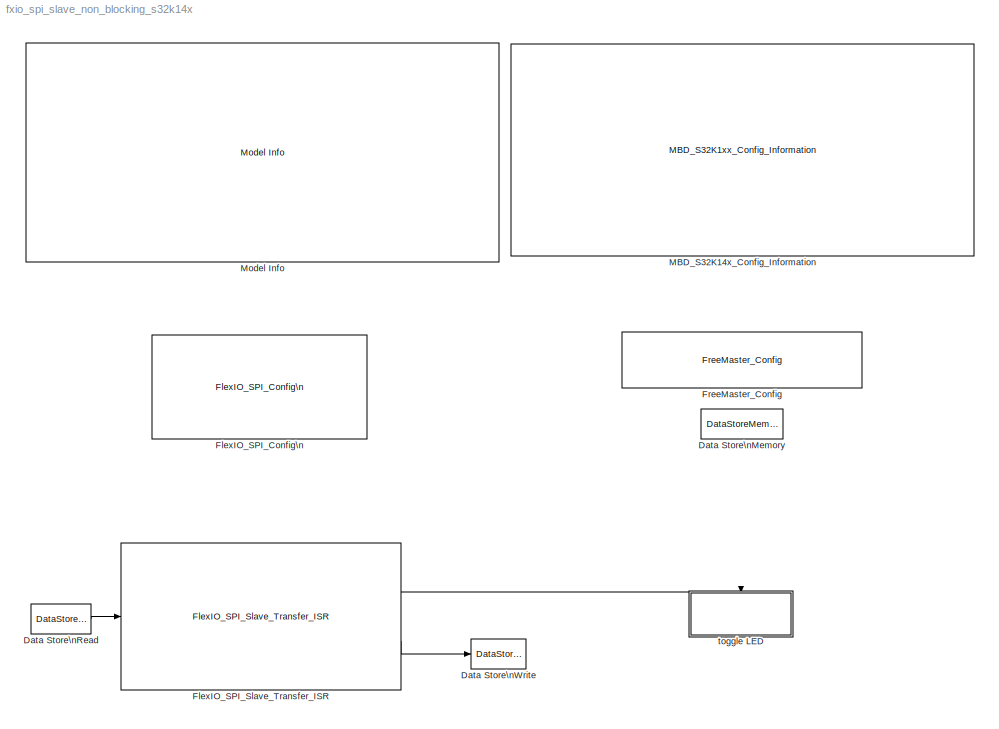
MODEL fxio_spi_slave_non_blocking_s32k14x
KIND model
CONFIG InitFcn = mbd_s32k_consistency_checks(bdroot(gcs));
BLOCK [DataStoreMemory] Data Store\nMemory
  DataStoreName = slave_recv
  Dimensions = 1
  OutDataTypeStr = uint8
  ReadBeforeWriteMsg = warning
  SID = 218
  ShowAdditionalParam = off
  WriteAfterReadMsg = warning
  WriteAfterWriteMsg = warning
BLOCK [DataStoreRead] Data Store\nRead
  DataStoreName = slave_recv
  Ports = [0, 1]
  SID = 219
BLOCK [DataStoreWrite] Data Store\nWrite
  DataStoreName = slave_recv
  Ports = [1]
  SID = 220
BLOCK [Reference] FlexIO_SPI_Config\n  REF=mbd_s32k1xx_ec_toolbox/Communication Blocks/FlexIO Blocks\n/FlexIO SPI Blocks/FlexIO_SPI_Config\n
  BaudRate = 10000
  BitOrder = MSB first
  CPHA = 0
  CPOL = 0
  DriverType = Interrupts
  InstanceNumber = 0
  MISOPin = PTD1: [FXIO_D1 | FlexIO Bi-directional Shift/timer I/O]
  MOSIPin = PTD0: [FXIO_D0 | FlexIO Bi-directional Shift/timer I/O]
  Ports = []
  Priority = 1
  Role = Slave
  SCKPin = PTD2: [FXIO_D4 | FlexIO Bi-directional Shift/timer I/O]
  SID = 187
  SSPin = PTD3: [FXIO_D5 | FlexIO Bi-directional Shift/timer I/O]
  ShowAdvanced = on
  SourceBlock = mbd_s32k1xx_ec_toolbox/Communication Blocks/FlexIO Blocks\n/FlexIO SPI Blocks/FlexIO_SPI_Config\n
  SourceType = flexio_spi_s32k_config
  TransferSize = 1B
BLOCK [Reference] FlexIO_SPI_Slave_Transfer_ISR  REF=mbd_s32k1xx_ec_toolbox/Communication Blocks/FlexIO Blocks\n/FlexIO SPI Blocks/FlexIO_SPI_Slave_Transfer_ISR
  InstanceNumber = 0
  Ports = [1, 2]
  Priority = 5
  SID = 208
  SourceBlock = mbd_s32k1xx_ec_toolbox/Communication Blocks/FlexIO Blocks\n/FlexIO SPI Blocks/FlexIO_SPI_Slave_Transfer_ISR
  SourceType = flexio_spi_s32k_slave_transfer_isr
BLOCK [Reference] FreeMaster_Config  REF=mbd_s32k1xx_ec_toolbox/Utility Blocks/FreeMaster_Config
  Ports = []
  SID = 224
  SourceBlock = mbd_s32k1xx_ec_toolbox/Utility Blocks/FreeMaster_Config
  SourceType = fm_s32k_config
  baudrate = 115200
  comm_buffer_size = 255
  comm_buffer_size_auto = on
  comm_rqueue_size = 32
  comm_rqueue_size_default = on
  interface = LPUART1
  isr_prio = 11
  max_rec_vars = 8
  max_scope_vars = 8
  mode = Short Interrupt
  rec_buff_size = 1024
  rec_timebase = 0
  rec_timebase_unit = seconds
  rxd = PTC6: [LPUART1_RX | Receive]
  show_adv_opts = on
  txd = PTC7: [LPUART1_TX | Transmit]
  use_recorder = on
  use_scope = on
BLOCK [Reference] MBD_S32K14x_Config_Information  REF=mbd_s32k1xx_ec_toolbox/MBD_S32K1xx_Config_Information
  ADC_PcrCheckEnDis = on
  AMMCLIB_PcrCheckEnDis = on
  CMP_PcrCheckEnDis = on
  CSEc_PcrCheckEnDis = on
  ConfigParams_PcrCheckEnDis = on
  FM_PcrCheckEnDis = on
  FTM_Dual_Edge_Inputs_PcrCheckEnDis = on
  FTM_Hall_Sensor_Inputs_PcrCheckEnDis = on
  FTM_Input_Edge_Inputs_PcrCheckEnDis = on
  FTM_PWM_PcrCheckEnDis = on
  FTM_Quadrature_Inputs_PcrCheckEnDis = on
  FlexCAN_PcrCheckEnDis = on
  FlexIO_PcrCheckEnDis = on
  GPIO_InputPcrCheckEnDis = on
  GPIO_OutputPcrCheckEnDis = on
  LIN_PcrCheckEnDis = on
  LPI2C_PcrCheckEnDis = on
  LPSPI_PcrCheckEnDis = on
  LPTMR_PcrCheckEnDis = on
  LPUART_PcrCheckEnDis = on
  ModelRef_PcrCheckEnDis = on
  PDB0_PcrCheckEnDis = on
  PIT_PcrCheckEnDis = on
  Ports = []
  Profile_PcrCheckEnDis = on
  RTC_PcrCheckEnDis = on
  SBC_PcrCheckEnDis = on
  SID = 117
  SourceBlock = mbd_s32k1xx_ec_toolbox/MBD_S32K1xx_Config_Information
  SourceType = MBDTBX_EC_S32K
  WDOG_PcrCheckEnDis = on
  config_params = []
  disp_str = Target : S32K144-64KB_SRAM\nPackage : 100-pin\nSystem clock : 80 MHz\nXTAL clock : External 8 MHz\nCompiler : GCC\nTarget Type : FLASH\nDownload Code after build : (OpenSDA: D)\nStep Tick Interrupt Priority : 15
  ds_import_enable = on
  eDMA_PcrCheckEnDis = on
  gcc_target_assemble_opts = -mcpu=cortex-m4 -mthumb -mfloat-abi=hard -mfpu=fpv4-sp-d16 -g
  gcc_target_compile_opts = -mcpu=cortex-m4 -mthumb -mfloat-abi=hard -mfpu=fpv4-sp-d16 -O1 -g -gstrict-dwarf
  gcc_target_default_lcf = on
  gcc_target_link_opts = -mcpu=cortex-m4 -mthumb -mfloat-abi=hard -mfpu=fpv4-sp-d16
  gcc_target_user_lcf = S32K144_64_flash.ld
  ghs_target_assemble_opts = -cpu=cortexm4f -fpu=vfpv4_d16
  ghs_target_compile_opts = -cpu=cortexm4f -thumb -DARM_MATH_CM4 -fpu=vfpv4_d16 -fsingle -Ogeneral -Wundef -Wimplicit-int -Wshadow -Wtrigraphs --no_commons --gnu_asm -gnu99 -gdwarf-2 -G
  ghs_target_default_lcf = off
  ghs_target_link_opts = -cpu=cortexm4f -thumb -fpu=vfpv4_d16
  ghs_target_user_lcf = S32K144_64_flash.ld
  iar_target_assemble_opts = --cpu Cortex-M4F --thumb --fpu VFPv4_sp
  iar_target_compile_opts = --cpu=Cortex-M4F --thumb --fpu=VFPv4_sp -Ol -e --debug --dlib_config normal
  iar_target_default_lcf = off
  iar_target_link_opts = --no_exceptions --vfe --inline
  iar_target_user_lcf = S32K144_64_flash.icf
  mbdt_ver = 0
  mcu_steptick_prio = 15
  mcu_steptick_timer = LPIT Channel 0
  mcu_system_clock_freq = 80
  mcu_target_name = S32K144
  mcu_target_package = 100-LQFP
  mcu_target_sram_size = 64KB
  mcu_xtal_freq = External 8
  pil_download_enable = off
  pil_download_rate = 57600
  pil_opensda_drive = Custom
  pil_opensda_drive_custom = D
  pil_uart_instance = 1
  pil_uart_rx = PTC6: [LPUART1_RX | Receive]
  pil_uart_tx = PTC7: [LPUART1_TX | Transmit]
  rbl_com_port = Custom
  rbl_com_port_custom = COM1
  rbl_download_enable = on
  rbl_download_interface = OpenSDA
  rbl_restart_request = off
  rbl_start_delay = 5000000
  target_compiler = GCC
  target_memory = FLASH
BLOCK [Reference] Model Info  REF=simulink/Model-Wide\nUtilities/Model Info
  DisplayStringWithTags = Model Name: %<ModelName>\n\nDescription: %<Description>
  Frame = off
  HorizontalTextAlignment = Left
  LeftAlignmentValue = 0.02
  MaskDisplayString = Model Name: fxio_spi_slave_non_blocking_s32k14x\\n\\nDescription: This example uses SPI emulation via FLEXIO and acts like a Slave.\\n\\nHW prerequisite:\\n- 2x S32K144 EVB (one running Master from fxio_spi_master_non_blocking), one slave running this code\\n- Connect:\\n      MOSI (slave) [PTD0] - MOSI (master) [PTD0]\\n      MISO (slave) [PTD1] - MISO (master) [PTD1]\\n      SCK (slave)  [PTD2] ...<+324ch>
  Ports = []
  SID = 173
  SourceBlock = simulink/Model-Wide\nUtilities/Model Info
  SourceProductBaseCode = SL
  SourceProductName = Simulink
  SourceType = CMBlock
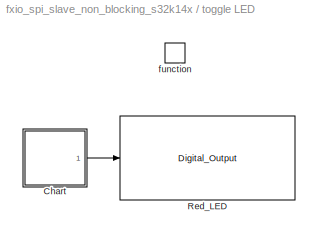
BLOCK [SubSystem] toggle LED
  Ports = [0, 0, 0, 1]
  RequestExecContextInheritance = off
  SID = 210
  Variant = off
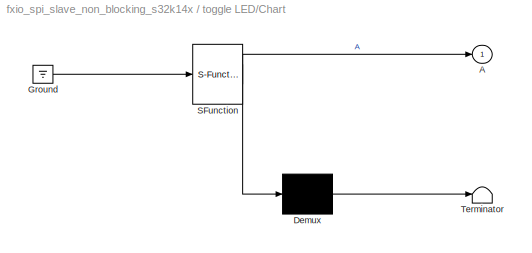
BLOCK [SubSystem] toggle LED/Chart
  ErrorFcn = Stateflow.Translate.translate
  PermitHierarchicalResolution = ExplicitOnly
  Ports = [0, 1]
  RequestExecContextInheritance = off
  SFBlockType = Chart
  SID = 216
  TreatAsAtomicUnit = on
  Variant = off
BLOCK [Outport] toggle LED/Chart/ A
  IconDisplay = Port number
  SID = 216::6
BLOCK [Demux] toggle LED/Chart/ Demux 
  Outputs = 1
  Ports = [1, 1]
  SID = 216::32
BLOCK [Ground] toggle LED/Chart/ Ground 
  SID = 216::34
BLOCK [S-Function] toggle LED/Chart/ SFunction 
  EnableBusSupport = on
  FunctionName = sf_sfun
  PortCounts = [1 2]
  Ports = [1, 2]
  SFcnIsStateOwnerBlock = off
  SFunctionDeploymentMode = off
  SID = 216::31
  Tag = Stateflow S-Function fxio_spi_slave_non_blocking_s32k14x 3
BLOCK [Terminator] toggle LED/Chart/ Terminator 
  SID = 216::33
BLOCK [Reference] toggle LED/Red_LED  REF=mbd_s32k1xx_ec_toolbox/GPIO Blocks/Digital_Output
  Ports = [1]
  SID = 217
  SourceBlock = mbd_s32k1xx_ec_toolbox/GPIO Blocks/Digital_Output
  SourceType = gpio_s32k_output
  drive_strength = Low
  gpio_pin = PTD15: [PTD15 | Port D I/O]
  init_val = Low
BLOCK [TriggerPort] toggle LED/function
  Ports = []
  SID = 215
  StatesWhenEnabling = held
  TriggerType = function-call
  VariantControl = Variant
LINE Data Store\nRead:1 -> FlexIO_SPI_Slave_Transfer_ISR:1
LINE FlexIO_SPI_Slave_Transfer_ISR:1 -> toggle LED:trigger
LINE FlexIO_SPI_Slave_Transfer_ISR:2 -> Data Store\nWrite:1
LINE toggle LED/Chart/ Demux :1 -> toggle LED/Chart/ Terminator :1
LINE toggle LED/Chart/ Ground :1 -> toggle LED/Chart/ SFunction :1
LINE toggle LED/Chart/ SFunction :1 -> toggle LED/Chart/ Demux :1
LINE toggle LED/Chart/ SFunction :2 -> toggle LED/Chart/ A:1
LINE toggle LED/Chart:1 -> toggle LED/Red_LED:1
CHART toggle LED/Chart states=2 transitions=3
  STATE_LABEL 'A'
  STATE_LABEL 'A1'
